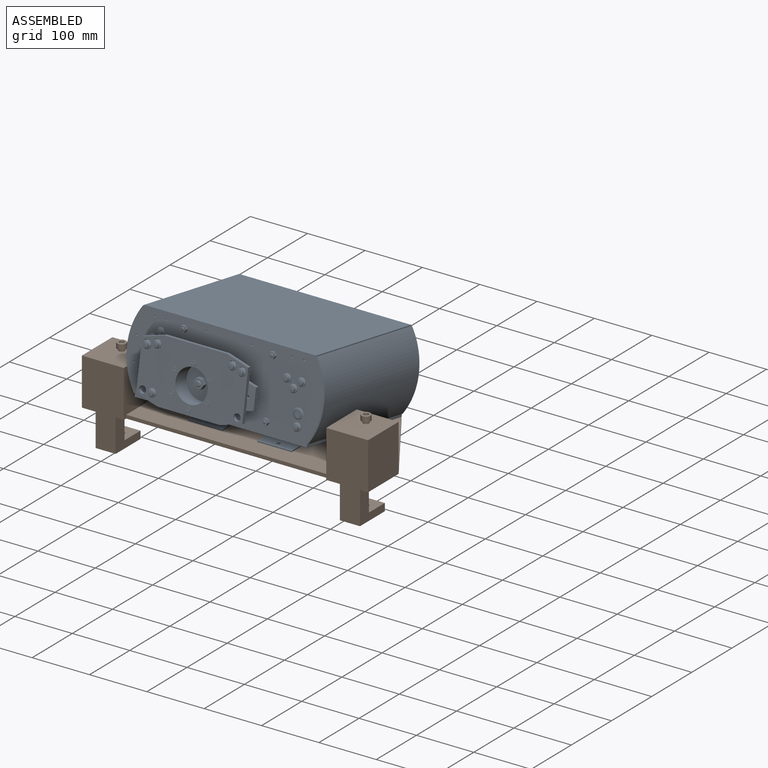
[diagram: assembled view]
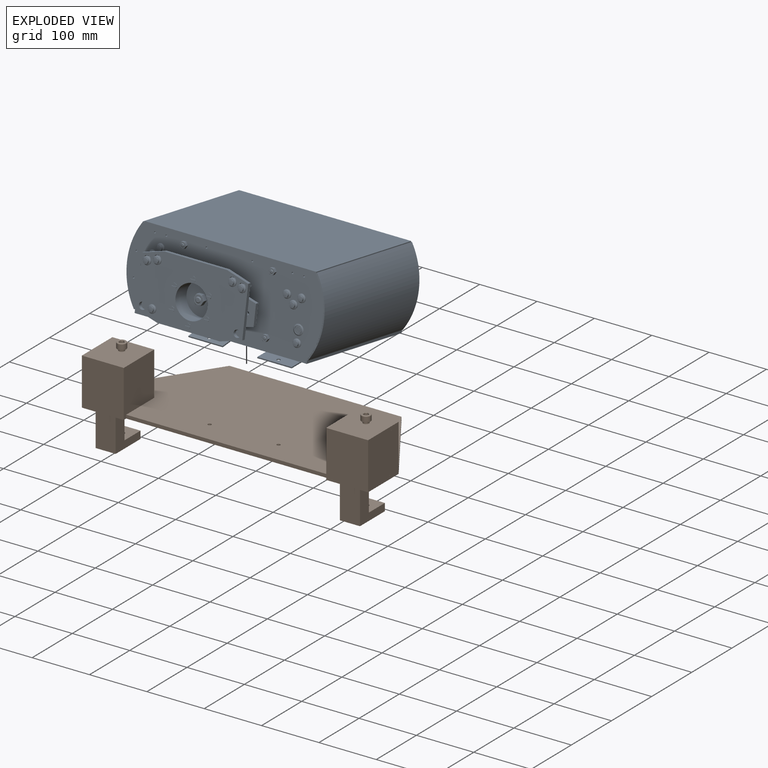
[diagram: exploded view]
GUIDED TOUR — FREECAD ASSEMBLY "Base"

This assembly has 2 components, labeled P0..P1 below (a component is one placed body or linked part; the same part can appear more than once), held together by 0 modeled joints plus 1 derived contact edge. A joint is a constraint between two components; its type names the relative motion it leaves free:
  CONTACT — a derived adjacency edge — the two components touch in the source model (clearance under 2% of the assembly's diagonal); it is measured from the geometry, not a modeled constraint.
Axis/direction vectors are unit vectors and 'through' points are millimeter coordinates, both in the assembly's world frame.

MATES
  1. CONTACT "contact_0_1": P0 <-> P1, contact direction (1.000, 0.000, 0.000) through (-47.15, -46.20, -91.01) mm (derived from contact, not a modeled constraint)

ASSEMBLY ORDER
  1. P1 — the base component [order verified]
  2. P0 [order verified]
Order-tag legend:
  [order verified] — this step's position reverses a verified removal order: the component was checked to insert without passing through the ones already placed.

Of the 2 components, 1 carries a construction recipe — the FreeCAD feature program (sketches with constraints, then the solid features that consume them) that regenerates the part from scratch, quoted from this document or from the linked companion document it references; the rest are supplied as boundary geometry only. The tour below walks the components in assembly order: each is shown spotlighted twice — in the assembled view, then in the exploded view, where a leader line traces a displaced component back to its assembled socket (components that stay in place when exploded have no leader line; saturated green if recipe-attached, orange if geometry-only; every other component desaturated gray) — followed by its recipe or geometry summary and the mates that hold it.
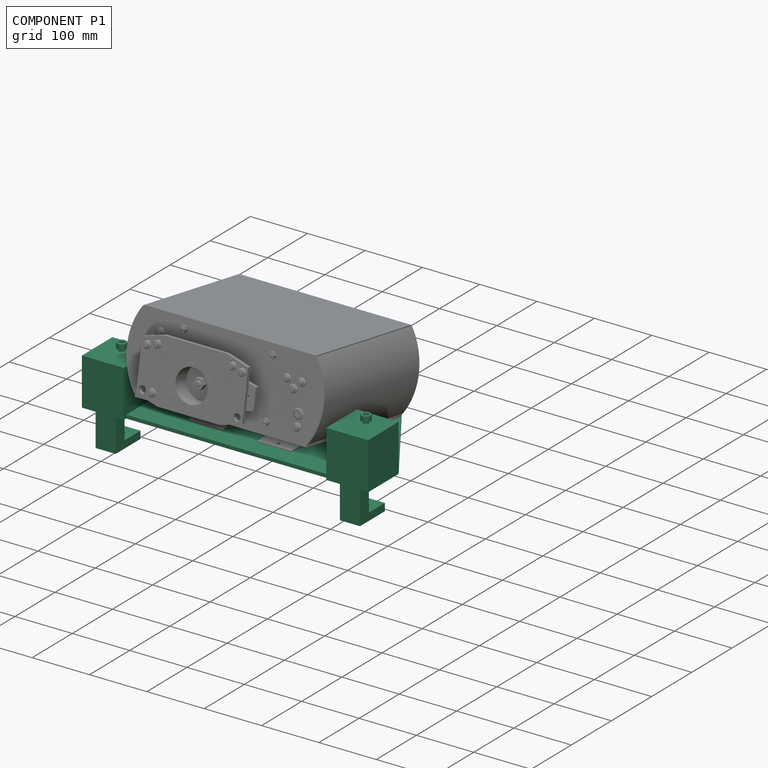
[diagram: component P1 — assembled]
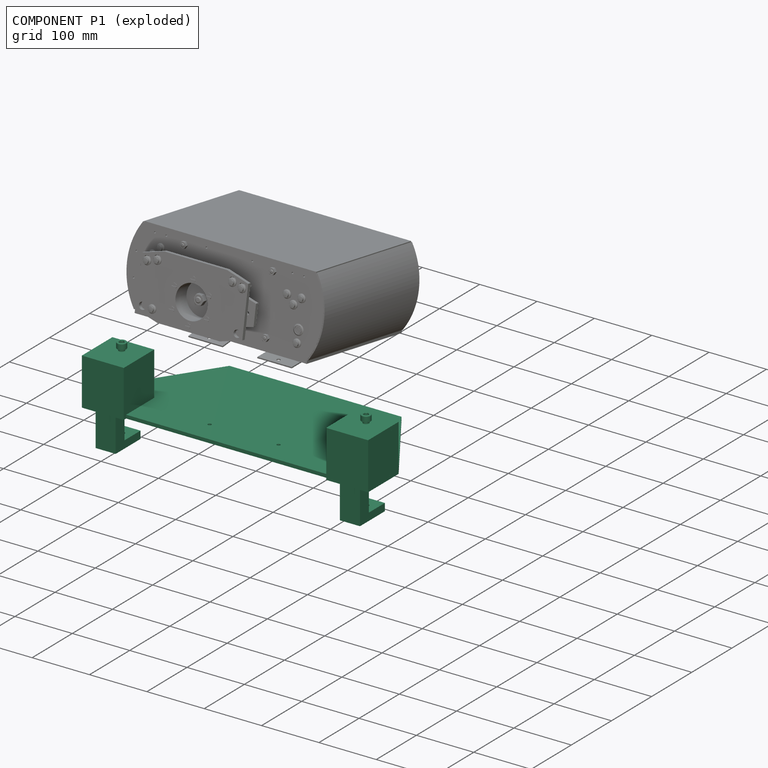
[diagram: component P1 — exploded]
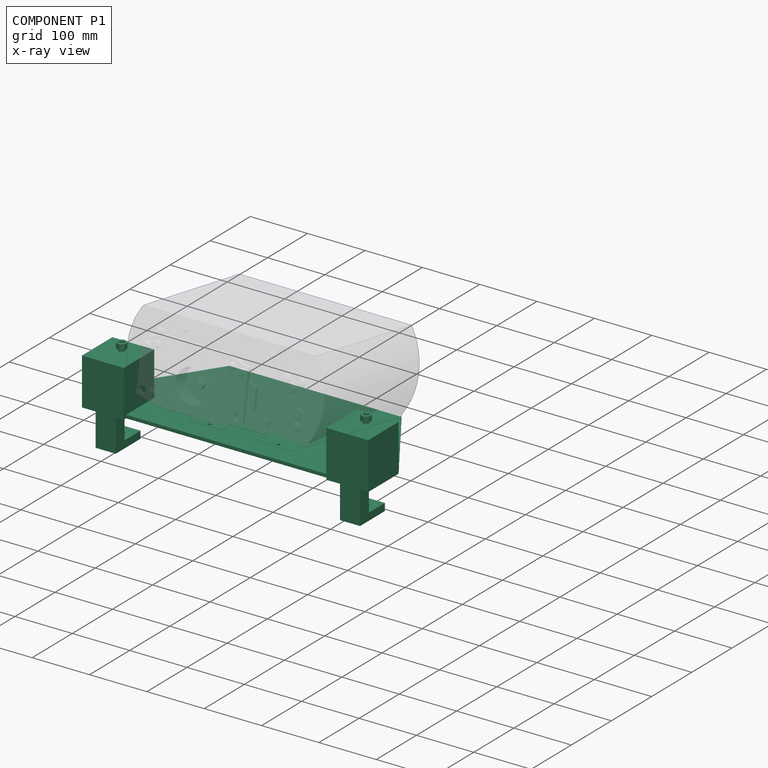
[diagram: component P1 — x-ray view]
COMPONENT P1 — recipe-attached ("Крепление к столу", modeled in this document).
Held by: resting contact with P0 (derived edge).
Construction recipe (the document's own serialized feature program — sketch geometry with constraints, then the solid features built on it; lengths are millimeters unless a unit is written):

FEATURE [Sketcher::SketchObject] Sketch043
  FullyConstrained = true
  MapMode = 5
  Support = -> [XY_Plane047]
  sketch-geometry (20):
    g0: LineSegment StartX=-150 StartY=110 StartZ=0 EndX=150 EndY=110 EndZ=0
    g1: LineSegment StartX=150 StartY=-110 StartZ=0 EndX=-150 EndY=-110 EndZ=0
    g2: LineSegment StartX=250 StartY=-40 StartZ=0 EndX=250 EndY=-110 EndZ=0
    g3: LineSegment StartX=-250 StartY=-40 StartZ=0 EndX=-250 EndY=-110 EndZ=0
    g4: LineSegment StartX=-250 StartY=-110 StartZ=0 EndX=-150 EndY=-110 EndZ=0
    g5: LineSegment StartX=-150 StartY=110 StartZ=0 EndX=-250 EndY=-40 EndZ=0
    g6: LineSegment StartX=150 StartY=110 StartZ=0 EndX=250 EndY=-40 EndZ=0
    g7: LineSegment StartX=-150 StartY=110 StartZ=0 EndX=-150 EndY=-110 EndZ=0
    g8: LineSegment StartX=150 StartY=110 StartZ=0 EndX=150 EndY=-110 EndZ=0
    g9: LineSegment StartX=150 StartY=-110 StartZ=0 EndX=194 EndY=-110 EndZ=0
    g10: LineSegment StartX=250 StartY=-110 StartZ=0 EndX=234 EndY=-110 EndZ=0
    g11: LineSegment StartX=234 StartY=-110 StartZ=0 EndX=234 EndY=-85 EndZ=0
    g12: LineSegment StartX=234 StartY=-85 StartZ=0 EndX=194 EndY=-85 EndZ=0
    g13: LineSegment StartX=194 StartY=-85 StartZ=0 EndX=194 EndY=-110 EndZ=0
    g14: LineSegment StartX=150 StartY=-110 StartZ=0 EndX=250 EndY=-110 EndZ=0
    g15: LineSegment StartX=-250 StartY=-110 StartZ=0 EndX=-234 EndY=-110 EndZ=0
    g16: LineSegment StartX=-234 StartY=-110 StartZ=0 EndX=-234 EndY=-85 EndZ=0
    g17: LineSegment StartX=-234 StartY=-85 StartZ=0 EndX=-194 EndY=-85 EndZ=0
    g18: LineSegment StartX=-194 StartY=-85 StartZ=0 EndX=-194 EndY=-110 EndZ=0
    g19: LineSegment StartX=-194 StartY=-110 StartZ=0 EndX=-150 EndY=-110 EndZ=0
  constraints (55):
    c: Horizontal(g0)
    c: Horizontal(g1)
    c: Symmetric(g0,g1,g-1)
    c: DistanceX(g0,g0) = 300
    c: Vertical(g2)
    c: Vertical(g3)
    c: Coincident(g4,g3)
    c: Coincident(g4,g1)
    c: Horizontal(g4)
    c: Equal(g1,g0)
    c: DistanceY(g2,g2) = 70
    c: Coincident(g5,g0)
    c: Coincident(g5,g3)
    c: Coincident(g6,g0)
    c: DistanceX(g1,g2) = 100
    c: Equal(g6,g5)
    c: DistanceY(g1,g0) = 220
    c: Equal(g2,g3)
    c: Coincident(g6,g2)
    c: Coincident(g7,g0)
    c: Coincident(g7,g1)
    c: Coincident(g8,g0)
    c: Coincident(g8,g1)
    c: Coincident(g9,g1)
    c: Horizontal(g9)
    c: Coincident(g10,g2)
    c: Horizontal(g10)
    c: Coincident(g11,g10)
    c: Vertical(g11)
    c: Coincident(g12,g11)
    c: Horizontal(g12)
    c: Coincident(g13,g12)
    c: Vertical(g13)
    c: Coincident(g9,g13)
    c: DistanceX(g12,g12) = 40
    c: DistanceX(g10,g10) = 16
    c: DistanceY(g13,g13) = 25
    c: Coincident(g14,g1)
    c: Coincident(g14,g2)
    c: Horizontal(g14)
    c: Vertical(g7)
    c: Coincident(g15,g3)
    c: PointOnObject(g15,g4)
    c: Coincident(g16,g15)
    c: Vertical(g16)
    c: Coincident(g17,g16)
    c: Horizontal(g17)
    c: Coincident(g18,g17)
    c: PointOnObject(g18,g4)
    c: Vertical(g18)
    c: Coincident(g19,g18)
    c: Coincident(g19,g1)
    c: Equal(g9,g19)
    c: Equal(g12,g17)
    c: Equal(g13,g18)
FEATURE [PartDesign::Pad] Pad021
  Direction = (1,1,1)
  Length = 6
  Length2 = 100
  Profile = -> Sketch043
  Type = 0
FEATURE [PartDesign::SubShapeBinder] Binder002
  BindMode = 0
  ClaimChildren = false
  Context = -> Part026 [Body019.Binder002.]
  Fuse = false
  MakeFace = true
  PartialLoad = false
  Relative = true
  Support = -> [Part[Part014.Clone024.Edge28,Part014.Part028.Body024.Pocket034.Edge28]]
  _Version = 2
FEATURE [PartDesign::SubShapeBinder] Binder003
  BindMode = 0
  ClaimChildren = false
  Context = -> Part026 [Body019.Binder003.]
  Fuse = false
  MakeFace = true
  PartialLoad = false
  Relative = true
  Support = -> [Part[Part014.Clone025.Edge5,Part014.Body025.Pocket037.Edge5]]
  _Version = 2
FEATURE [PartDesign::Pocket] Pocket038
  BaseFeature = -> Pad021
  Length = 5
  Length2 = 100
  Midplane = true
  Profile = -> Binder003
  Type = 1
FEATURE [PartDesign::Body] Body019  label="Основа"
  Group = -> [Sketch043,Pad021,Binder002,Binder003,Pocket038]
  Origin = -> Origin046
  Tip = -> Pocket038
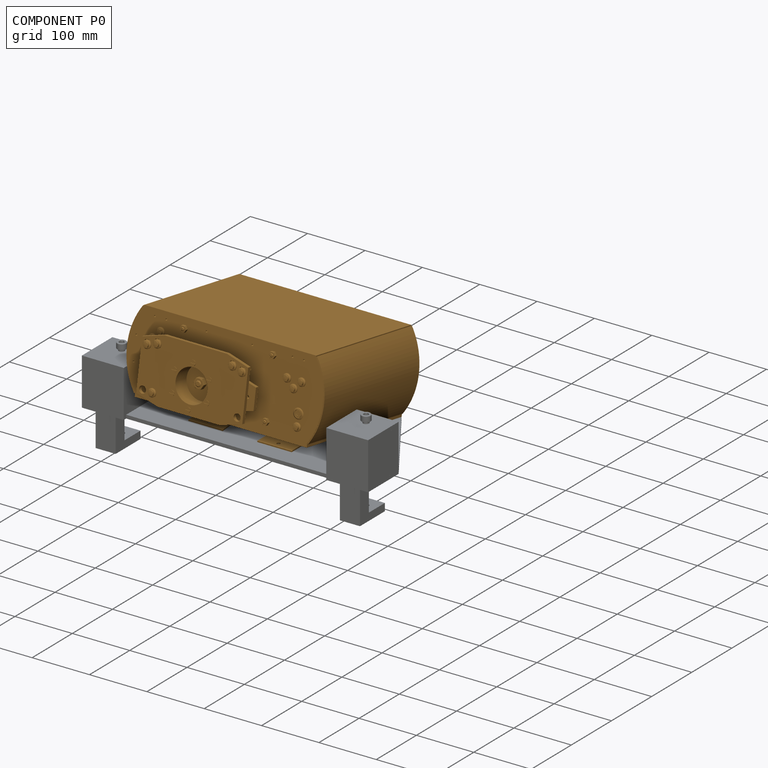
[diagram: component P0 — assembled]
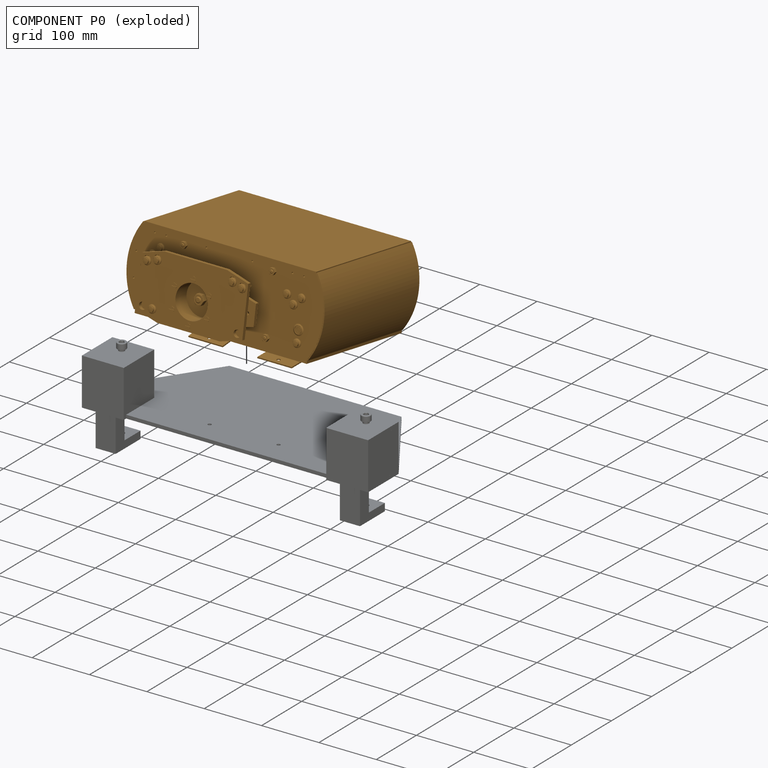
[diagram: component P0 — exploded]
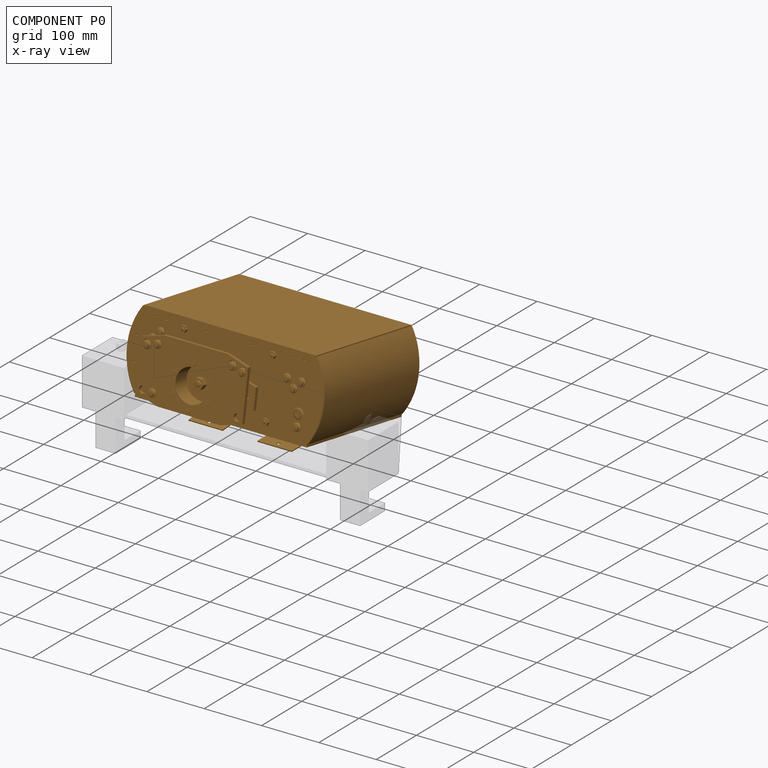
[diagram: component P0 — x-ray view]
COMPONENT P0 — geometry summary ("Base"; no construction recipe available for this part):
  bounding box: 349.8 x 348.8 x 189.2 mm
  tessellated surface: 627,667 triangles
  volume: 4823208 mm^3 (21% of its bounding box)
Held by: resting contact with P1 (derived edge).
PROVENANCE & LICENSES
Assembly and component geometry: a FreeCAD (.FCStd) document from a public repository crawl; components, placements and joints were extracted with FreeCAD and each solid tessellated.
Construction recipes: the document's own serialized feature recipes (and, for linked parts, the recipes of companion documents from the same project).
License: as declared in the source repository (recorded in the dataset sidecar).
Joints: native FreeCAD joints and A2plus constraints are mapped to standard mate types; edges marked 'derived from contact' connect touching components and are measured from the geometry, not modeled.
Verification: 1 of this assembly's 2 components carries a construction recipe (1 from this document itself); the rest are geometry-only. Every component's tessellation passed the extraction mesh gates (mesh-volume checksum against the B-rep where available, bounding-box inflation <= 2%).
Renders: orthographic iso camera (az 35 / el 25); the floor grid conveys scale (grid pitch printed in each image; no ruler). In the exploded view each component is displaced by its stored offset vector: the offsets alone carry the explosion direction (mate normal/axis signs are not orientation cues and do not encode it), and separation distances are assigned per mate-chain, not proportionally to assembly-order depth.
